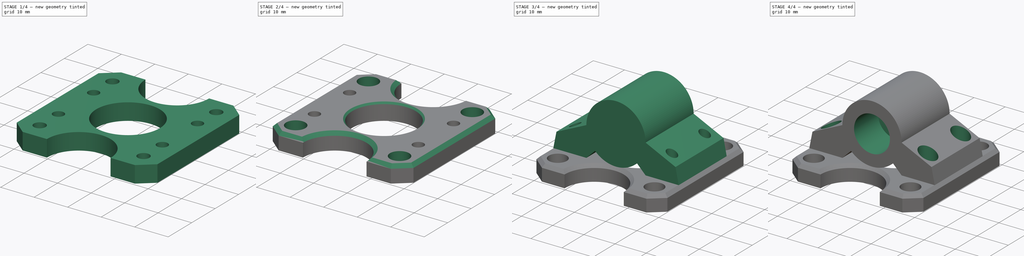
[diagram: build sequence overview — one tinted view per stage of 4, left to right]
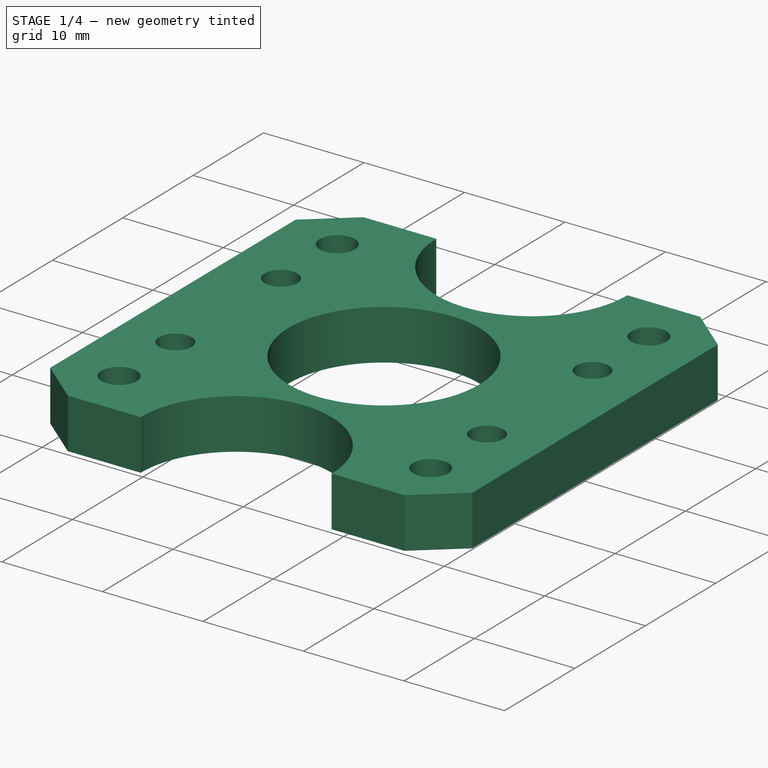
[diagram: stage 1 of 4 — iso view after this stage's code; geometry added in this stage tinted green]
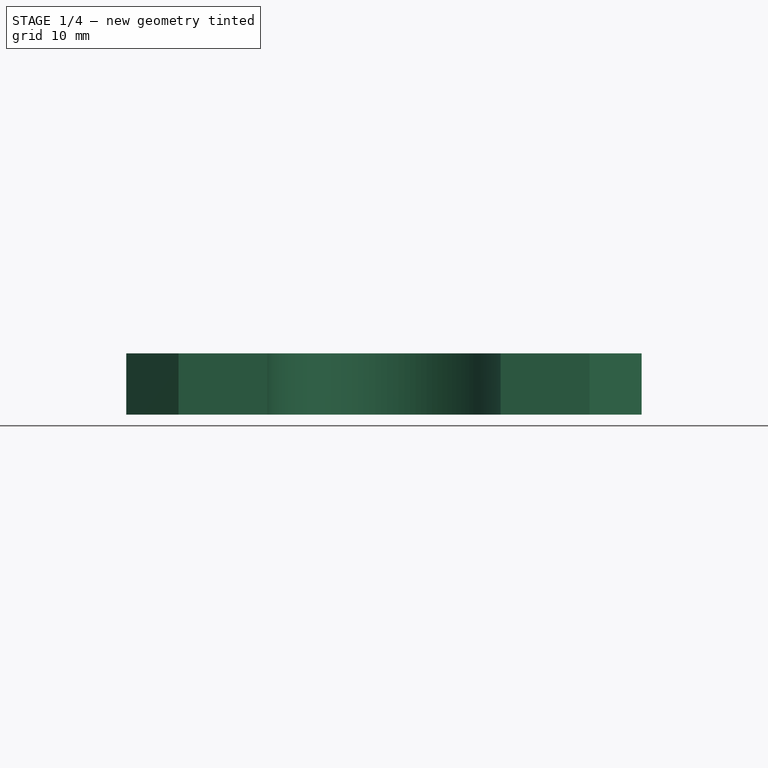
[diagram: stage 1 of 4 — front view after this stage's code; geometry added in this stage tinted green]
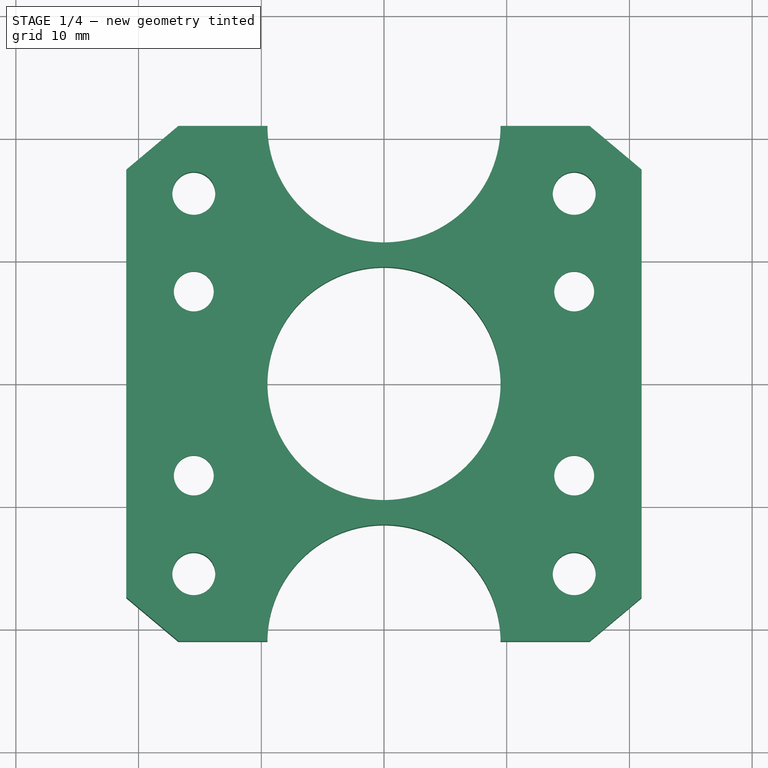
[diagram: stage 1 of 4 — top view after this stage's code; geometry added in this stage tinted green]
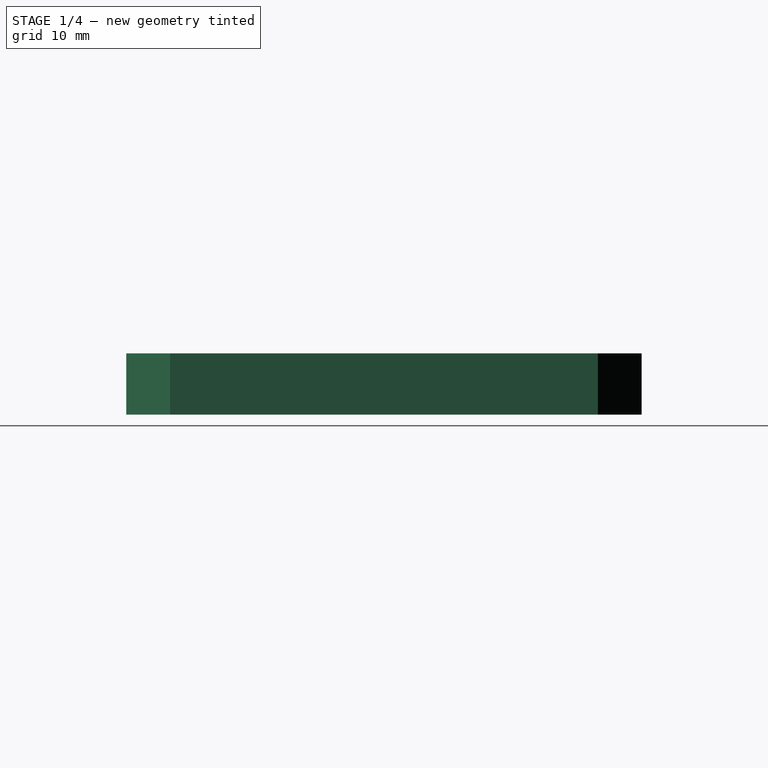
[diagram: stage 1 of 4 — right view after this stage's code; geometry added in this stage tinted green]
FCSTD DOCUMENT  (FreeCAD 0.18R16146 (Git))
Label: stepper-bracket
License: All rights reserved
LicenseURL: http://en.wikipedia.org/wiki/All_rights_reserved
objects: Sketcher::SketchObject×9, PartDesign::Pocket×7, PartDesign::Pad×2, PartDesign::Chamfer×2, PartDesign::Body×2, Part::Feature×1
note: 32 computed .brp shape members not serialized (recipe doc carries the construction recipe); baked Part::Feature solids carry a one-line shape summary decoded from their .brp

FEATURE [Part::Feature] stepper_nema17
  Placement = pos=(0,0,0) rot=(1,0,0;3.14159rad)
  shape: bbox 41.86 x 40.63 x 69.5 mm, 80 faces (baked)
FEATURE [Sketcher::SketchObject] Sketch
  MapMode = 5
  Support = -> [XY_Plane]
  sketch-geometry (19):
    g0: LineSegment StartX=16.75 StartY=21 StartZ=0 EndX=21 EndY=17.4338 EndZ=0
    g1: LineSegment StartX=21 StartY=17.4338 StartZ=0 EndX=21 EndY=0 EndZ=0
    g2: LineSegment StartX=-16.75 StartY=21 StartZ=0 EndX=-21 EndY=17.4338 EndZ=0
    g3: LineSegment StartX=-21 StartY=17.4338 StartZ=0 EndX=-21 EndY=0 EndZ=0
    g4: LineSegment StartX=16.75 StartY=-21 StartZ=0 EndX=21 EndY=-17.4338 EndZ=0
    g5: LineSegment StartX=21 StartY=-17.4338 StartZ=0 EndX=21 EndY=0 EndZ=0
    g6: LineSegment StartX=-21 StartY=0 StartZ=0 EndX=-21 EndY=-17.4338 EndZ=0
    g7: LineSegment StartX=-21 StartY=-17.4338 StartZ=0 EndX=-16.75 EndY=-21 EndZ=0
    g8: ArcOfCircle CenterX=0 CenterY=21 CenterZ=0 NormalX=0 NormalY=0 NormalZ=1 AngleXU=0 Radius=9.5 StartAngle=3.14159 EndAngle=6.28319
    g9: ArcOfCircle CenterX=0 CenterY=-21 CenterZ=0 NormalX=0 NormalY=0 NormalZ=1 AngleXU=0 Radius=9.5 StartAngle=2e-16 EndAngle=3.14159
    g10: LineSegment StartX=-16.75 StartY=-21 StartZ=0 EndX=-9.5 EndY=-21 EndZ=0
    g11: LineSegment StartX=16.75 StartY=-21 StartZ=0 EndX=9.5 EndY=-21 EndZ=0
    g12: Circle CenterX=0 CenterY=0 CenterZ=0 NormalX=0 NormalY=0 NormalZ=1 AngleXU=0 Radius=9.5
    g13: LineSegment StartX=-16.75 StartY=21 StartZ=0 EndX=-9.5 EndY=21 EndZ=0
    g14: LineSegment StartX=9.5 StartY=21 StartZ=0 EndX=16.75 EndY=21 EndZ=0
    g15: Circle CenterX=-15.5 CenterY=15.5 CenterZ=0 NormalX=0 NormalY=0 NormalZ=1 AngleXU=0 Radius=1.75
    g16: Circle CenterX=15.5 CenterY=15.5 CenterZ=0 NormalX=0 NormalY=0 NormalZ=1 AngleXU=0 Radius=1.75
    g17: Circle CenterX=-15.5 CenterY=-15.5 CenterZ=0 NormalX=0 NormalY=0 NormalZ=1 AngleXU=0 Radius=1.75
    g18: Circle CenterX=15.5 CenterY=-15.5 CenterZ=0 NormalX=0 NormalY=0 NormalZ=1 AngleXU=0 Radius=1.75
  constraints (58):
    c: Coincident(g1,g0)
    c: Coincident(g2,g3)
    c: Vertical(g3)
    c: Vertical(g1)
    c: DistanceY(g2,g0) = 0
    c: DistanceX(g2,g2) = 4.25
    c: DistanceY(g-1,g2) = 21
    c: Coincident(g5,g4)
    c: Vertical(g6)
    c: Coincident(g7,g6)
    c: PointOnObject(g9,g-2)
    c: DistanceY(g9,g-1) = 21
    c: Coincident(g10,g7)
    c: Horizontal(g10)
    c: Coincident(g11,g4)
    c: Horizontal(g11)
    c: Angle(g4,g11) = 2.44346
    c: DistanceX(g4,g0) = 0
    c: DistanceX(g7,g2) = 0
    c: DistanceY(g4,g6) = 0
    c: Coincident(g12,g-1)
    c: Angle(g10,g7) = 2.44346
    c: Vertical(g5)
    c: Coincident(g9,g11)
    c: Coincident(g9,g10)
    c: Coincident(g13,g2)
    c: Coincident(g13,g8)
    c: Horizontal(g13)
    c: Coincident(g14,g8)
    c: Coincident(g14,g0)
    c: Horizontal(g14)
    c: PointOnObject(g8,g-2)
    c: DistanceY(g8,g8) = 0
    c: DistanceY(g8,g8) = 0
    c: DistanceY(g9,g9) = 0
    c: DistanceY(g9,g9) = 0
    c: Angle(g2,g13) = 2.44346
    c: DistanceX(g15,g17) = 0
    c: DistanceX(g16,g18) = 0
    c: DistanceY(g16,g15) = 0
    c: DistanceY(g17,g18) = 0
    c: DistanceX(g15,g12) = 15.5
    c: DistanceX(g12,g16) = 15.5
    c: DistanceY(g12,g15) = 15.5
    c: DistanceY(g17,g12) = 15.5
    c: Diameter(g15) = 3.5
    c: Equal(g16,g15)
    c: Equal(g17,g15)
    c: Equal(g18,g15)
    c: PointOnObject(g3,g-1)
    c: PointOnObject(g1,g-1)
    c: DistanceX(g3,g12) = 21
    c: DistanceX(g12,g1) = 21
    c: Diameter(g12) = 19
    c: Equal(g8,g12)
    c: Equal(g9,g12)
    c: Coincident(g1,g5)
    c: Coincident(g3,g6)
FEATURE [PartDesign::Pad] Pad
  Length = 5
  Length2 = 100
  Profile = -> Sketch
  Type = 0
FEATURE [Sketcher::SketchObject] Sketch001
  MapMode = 5
  Support = -> [XY_Plane]
  sketch-geometry (28):
    g0: LineSegment StartX=-15.5 StartY=4.2 StartZ=0 EndX=-12.6421 EndY=5.85 EndZ=0
    g1: LineSegment StartX=-12.6421 StartY=5.85 StartZ=0 EndX=-12.6421 EndY=9.15 EndZ=0
    g2: LineSegment StartX=-12.6421 StartY=9.15 StartZ=0 EndX=-15.5 EndY=10.8 EndZ=0
    g3: LineSegment StartX=-15.5 StartY=10.8 StartZ=0 EndX=-18.3579 EndY=9.15 EndZ=0
    g4: LineSegment StartX=-18.3579 StartY=9.15 StartZ=0 EndX=-18.3579 EndY=5.85 EndZ=0
    g5: LineSegment StartX=-18.3579 StartY=5.85 StartZ=0 EndX=-15.5 EndY=4.2 EndZ=0
    g6: Circle [constr] CenterX=-15.5 CenterY=7.5 CenterZ=0 NormalX=0 NormalY=0 NormalZ=1 AngleXU=0 Radius=3.3
    g7: LineSegment StartX=-12.6421 StartY=-9.15 StartZ=0 EndX=-12.6421 EndY=-5.85 EndZ=0
    g8: LineSegment StartX=-12.6421 StartY=-5.85 StartZ=0 EndX=-15.5 EndY=-4.2 EndZ=0
    g9: LineSegment StartX=-15.5 StartY=-4.2 StartZ=0 EndX=-18.3579 EndY=-5.85 EndZ=0
    g10: LineSegment StartX=-18.3579 StartY=-5.85 StartZ=0 EndX=-18.3579 EndY=-9.15 EndZ=0
    g11: LineSegment StartX=-18.3579 StartY=-9.15 StartZ=0 EndX=-15.5 EndY=-10.8 EndZ=0
    g12: LineSegment StartX=-15.5 StartY=-10.8 StartZ=0 EndX=-12.6421 EndY=-9.15 EndZ=0
    g13: Circle [constr] CenterX=-15.5 CenterY=-7.5 CenterZ=0 NormalX=0 NormalY=0 NormalZ=1 AngleXU=0 Radius=3.3
    g14: LineSegment StartX=18.3579 StartY=5.85 StartZ=0 EndX=18.3579 EndY=9.15 EndZ=0
    g15: LineSegment StartX=18.3579 StartY=9.15 StartZ=0 EndX=15.5 EndY=10.8 EndZ=0
    g16: LineSegment StartX=15.5 StartY=10.8 StartZ=0 EndX=12.6421 EndY=9.15 EndZ=0
    g17: LineSegment StartX=12.6421 StartY=9.15 StartZ=0 EndX=12.6421 EndY=5.85 EndZ=0
    g18: LineSegment StartX=12.6421 StartY=5.85 StartZ=0 EndX=15.5 EndY=4.2 EndZ=0
    g19: LineSegment StartX=15.5 StartY=4.2 StartZ=0 EndX=18.3579 EndY=5.85 EndZ=0
    g20: Circle [constr] CenterX=15.5 CenterY=7.5 CenterZ=0 NormalX=0 NormalY=0 NormalZ=1 AngleXU=0 Radius=3.3
    g21: LineSegment StartX=18.3579 StartY=-9.15 StartZ=0 EndX=18.3579 EndY=-5.85 EndZ=0
    g22: LineSegment StartX=18.3579 StartY=-5.85 StartZ=0 EndX=15.5 EndY=-4.2 EndZ=0
    g23: LineSegment StartX=15.5 StartY=-4.2 StartZ=0 EndX=12.6421 EndY=-5.85 EndZ=0
    g24: LineSegment StartX=12.6421 StartY=-5.85 StartZ=0 EndX=12.6421 EndY=-9.15 EndZ=0
    g25: LineSegment StartX=12.6421 StartY=-9.15 StartZ=0 EndX=15.5 EndY=-10.8 EndZ=0
    g26: LineSegment StartX=15.5 StartY=-10.8 StartZ=0 EndX=18.3579 EndY=-9.15 EndZ=0
    g27: Circle [constr] CenterX=15.5 CenterY=-7.5 CenterZ=0 NormalX=0 NormalY=0 NormalZ=1 AngleXU=0 Radius=3.3
  constraints (68):
    c: Coincident(g0,g1)
    c: Coincident(g1,g2)
    c: Coincident(g2,g3)
    c: Coincident(g3,g4)
    c: Coincident(g4,g5)
    c: Coincident(g5,g0)
    c: Equal(g0, g1-g5) x5
    c: PointOnObject(g0,g6)
    c: PointOnObject(g1,g6)
    c: PointOnObject(g2,g6)
    c: PointOnObject(g3,g6)
    c: PointOnObject(g4,g6)
    c: PointOnObject(g5,g6)
    c: Coincident(g7,g8)
    c: Coincident(g8,g9)
    c: Coincident(g9,g10)
    c: Coincident(g10,g11)
    c: Coincident(g11,g12)
    c: Coincident(g12,g7)
    c: Equal(g7, g8-g12) x5
    c: PointOnObject(g7,g13)
    c: PointOnObject(g8,g13)
    c: PointOnObject(g9,g13)
    c: PointOnObject(g10,g13)
    c: PointOnObject(g11,g13)
    c: PointOnObject(g12,g13)
    c: Diameter(g6) = 6.6
    c: Vertical(g4)
    c: Equal(g13,g6)
    c: Vertical(g10)
    c: DistanceX(g13,g6) = 0
    c: DistanceY(g-1,g6) = 7.5
    c: DistanceY(g13,g-1) = 7.5
    c: DistanceX(g6,g-1) = 15.5
    c: Coincident(g14,g15)
    c: Coincident(g15,g16)
    c: Coincident(g16,g17)
    c: Coincident(g17,g18)
    c: Coincident(g18,g19)
    c: Coincident(g19,g14)
    c: Equal(g14, g15-g19) x5
    c: PointOnObject(g14,g20)
    c: PointOnObject(g15,g20)
    c: PointOnObject(g16,g20)
    c: PointOnObject(g17,g20)
    c: PointOnObject(g18,g20)
    c: PointOnObject(g19,g20)
    c: Coincident(g21,g22)
    c: Coincident(g22,g23)
    c: Coincident(g23,g24)
    c: Coincident(g24,g25)
    c: Coincident(g25,g26)
    c: Coincident(g26,g21)
    c: Equal(g21, g22-g26) x5
    c: PointOnObject(g21,g27)
    c: PointOnObject(g22,g27)
    c: PointOnObject(g23,g27)
    c: PointOnObject(g24,g27)
    c: PointOnObject(g25,g27)
    c: PointOnObject(g26,g27)
    c: DistanceY(g6,g20) = 0
    c: DistanceY(g27,g13) = 0
    c: Equal(g6,g20)
    c: Equal(g27,g6)
    c: Vertical(g17)
    c: Vertical(g24)
    c: DistanceX(g-1,g20) = 15.5
    c: DistanceX(g20,g27) = 0
FEATURE [PartDesign::Pocket] Pocket  label="m3 nuts"
  BaseFeature = -> Pad
  Length = 3
  Length2 = 100
  Profile = -> Sketch001
  Reversed = true
  Type = 0
FEATURE [Sketcher::SketchObject] Sketch002
  MapMode = 5
  Support = -> [XY_Plane]
  sketch-geometry (4):
    g0: Circle CenterX=-15.5 CenterY=7.5 CenterZ=0 NormalX=0 NormalY=0 NormalZ=1 AngleXU=0 Radius=1.625
    g1: Circle CenterX=15.5 CenterY=7.5 CenterZ=0 NormalX=0 NormalY=0 NormalZ=1 AngleXU=0 Radius=1.625
    g2: Circle CenterX=15.5 CenterY=-7.5 CenterZ=0 NormalX=0 NormalY=0 NormalZ=1 AngleXU=0 Radius=1.625
    g3: Circle CenterX=-15.5 CenterY=-7.5 CenterZ=0 NormalX=0 NormalY=0 NormalZ=1 AngleXU=0 Radius=1.625
  constraints (12):
    c: DistanceY(g0,g1) = 0
    c: DistanceY(g3,g2) = 0
    c: Diameter(g0) = 3.25
    c: Equal(g1,g0)
    c: Equal(g3,g0)
    c: Equal(g2,g0)
    c: DistanceY(g-1,g0) = 7.5
    c: DistanceX(g0,g-1) = 15.5
    c: DistanceY(g3,g-1) = 7.5
    c: DistanceX(g-1,g1) = 15.5
    c: DistanceX(g2,g1) = 0
    c: DistanceX(g3,g0) = 0
FEATURE [PartDesign::Pocket] Pocket001  label="m3 bolt holes"
  BaseFeature = -> Pocket
  Length = 5
  Length2 = 100
  Profile = -> Sketch002
  Reversed = true
  Type = 1
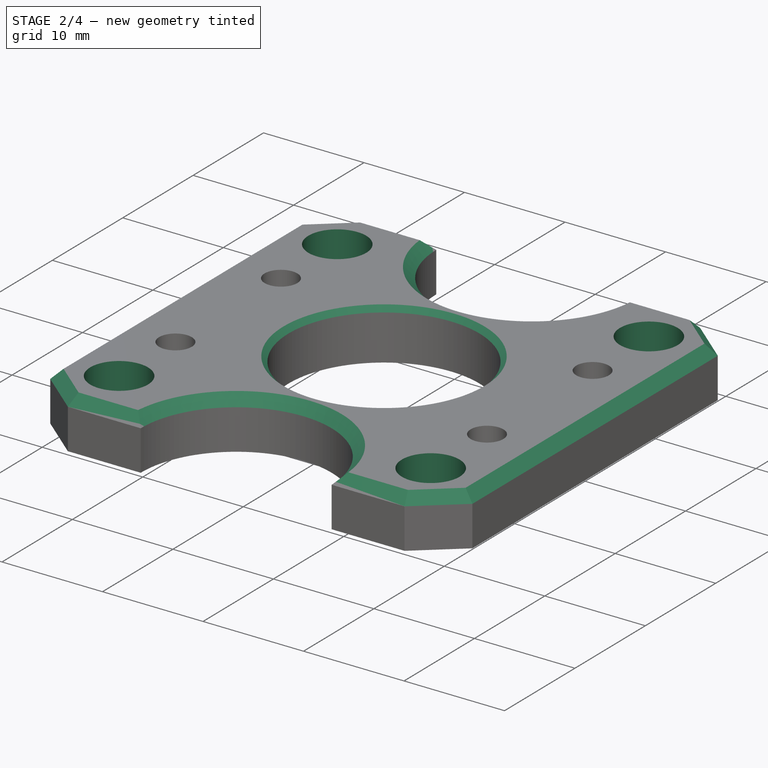
[diagram: stage 2 of 4 — iso view after this stage's code; geometry added in this stage tinted green]
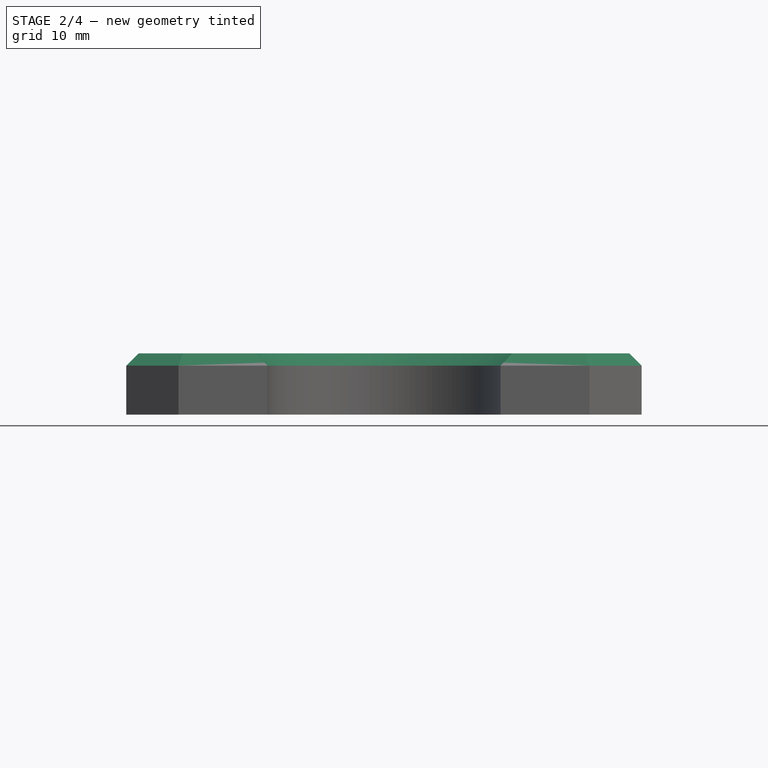
[diagram: stage 2 of 4 — front view after this stage's code; geometry added in this stage tinted green]
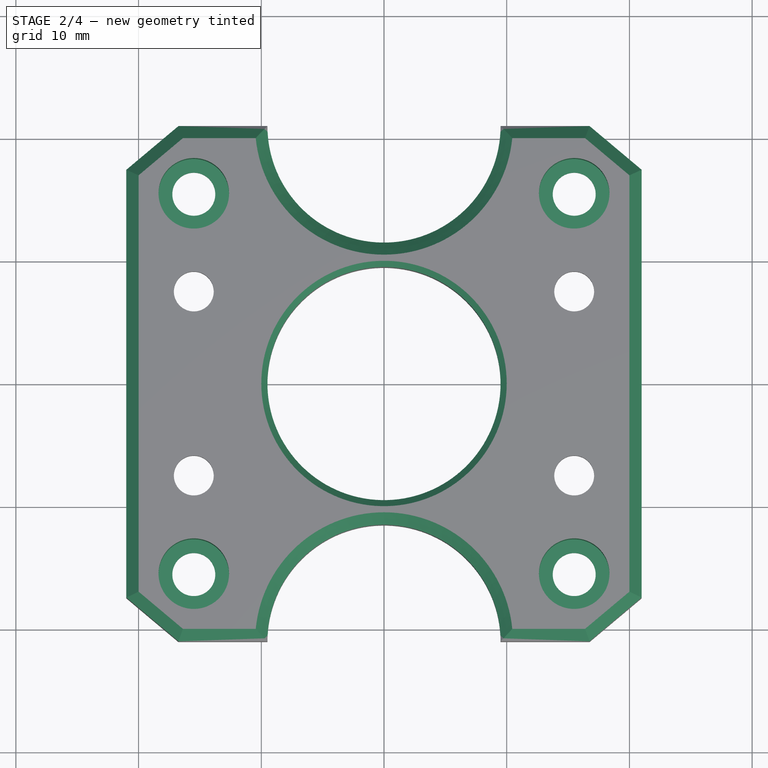
[diagram: stage 2 of 4 — top view after this stage's code; geometry added in this stage tinted green]
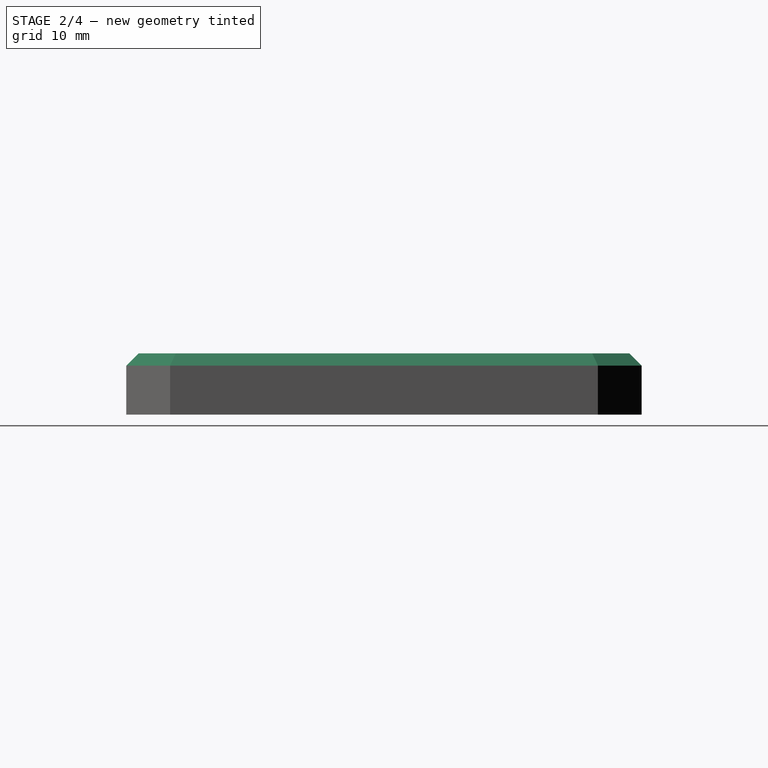
[diagram: stage 2 of 4 — right view after this stage's code; geometry added in this stage tinted green]
FEATURE [Sketcher::SketchObject] Sketch003
  AttachmentOffset = pos=(0,0,5) rot=(0,0,1;0rad)
  MapMode = 5
  Placement = pos=(0,0,5) rot=(0,0,1;0rad)
  Support = -> [XY_Plane]
  sketch-geometry (4):
    g0: Circle CenterX=-15.5 CenterY=15.5 CenterZ=0 NormalX=0 NormalY=0 NormalZ=1 AngleXU=0 Radius=2.875
    g1: Circle CenterX=15.5 CenterY=15.5 CenterZ=0 NormalX=0 NormalY=0 NormalZ=1 AngleXU=0 Radius=2.875
    g2: Circle CenterX=-15.5 CenterY=-15.5 CenterZ=0 NormalX=0 NormalY=0 NormalZ=1 AngleXU=0 Radius=2.875
    g3: Circle CenterX=15.5 CenterY=-15.5 CenterZ=0 NormalX=0 NormalY=0 NormalZ=1 AngleXU=0 Radius=2.875
  constraints (12):
    c: Equal(g1,g0)
    c: Equal(g0,g2)
    c: Equal(g3,g0)
    c: Diameter(g0) = 5.75
    c: DistanceY(g1,g0) = 0
    c: DistanceY(g3,g2) = 0
    c: DistanceY(g-1,g0) = 15.5
    c: DistanceY(g2,g-1) = 15.5
    c: DistanceX(g0,g-1) = 15.5
    c: DistanceX(g2,g0) = 0
    c: DistanceX(g-1,g1) = 15.5
    c: DistanceX(g1,g3) = 0
FEATURE [PartDesign::Pocket] Pocket002
  BaseFeature = -> Pocket001
  Length = 4.5
  Length2 = 100
  Profile = -> Sketch003
  Type = 0
FEATURE [PartDesign::Chamfer] Chamfer
  Base = -> Pocket002 [Edge57,Edge55,Edge53,Edge51,Edge7,Edge4,Edge10,Edge52,Edge54,Edge56,Edge58,Edge59,Edge61,Edge60]
  BaseFeature = -> Pocket002
  Size = 1
FEATURE [PartDesign::Body] Body001
  Group = -> [Sketch004,Pad001,Sketch005,Pocket003,Sketch006,Pocket004,Sketch007,Pocket005,Sketch008,Pocket006]
  Origin = -> Origin001
  Tip = -> Pocket006
FEATURE [PartDesign::Chamfer] Chamfer002
  Base = -> Chamfer [Edge73]
  BaseFeature = -> Chamfer
  Size = 0.5
FEATURE [PartDesign::Body] Body
  Group = -> [Sketch,Pad,Sketch001,Pocket,Sketch002,Pocket001,Sketch003,Pocket002,Chamfer,Chamfer002]
  Origin = -> Origin
  Tip = -> Chamfer002
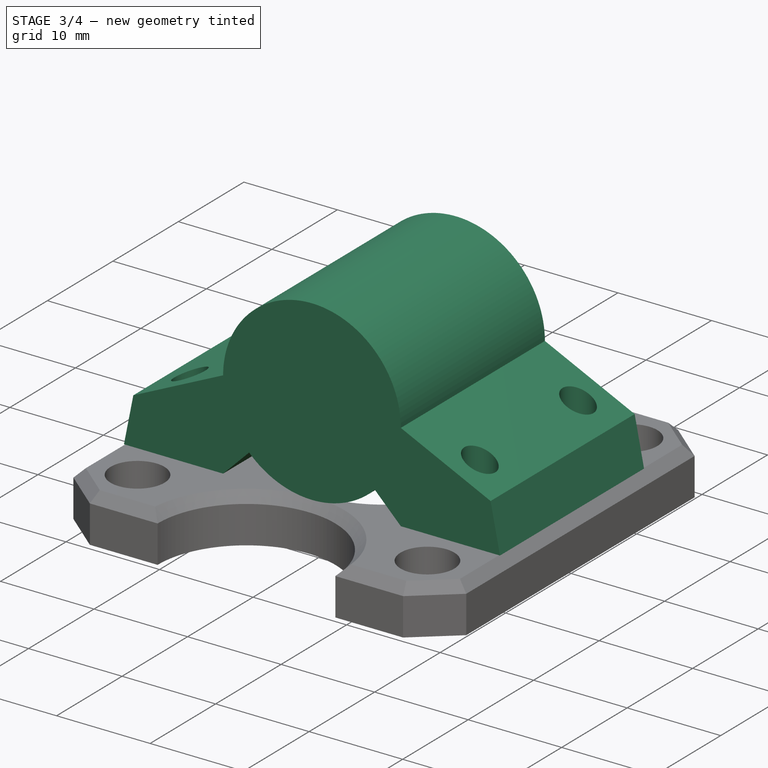
[diagram: stage 3 of 4 — iso view after this stage's code; geometry added in this stage tinted green]
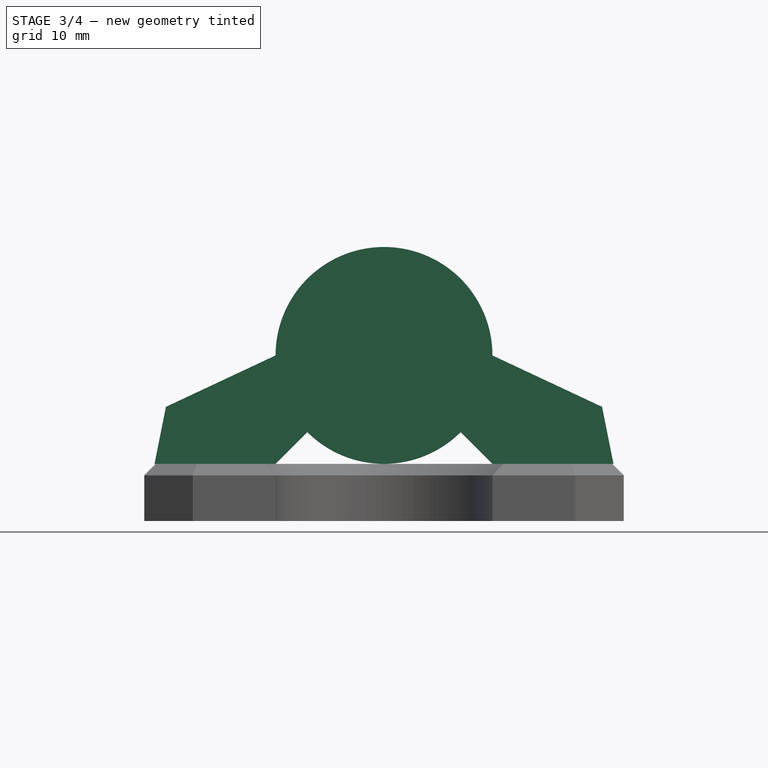
[diagram: stage 3 of 4 — front view after this stage's code; geometry added in this stage tinted green]
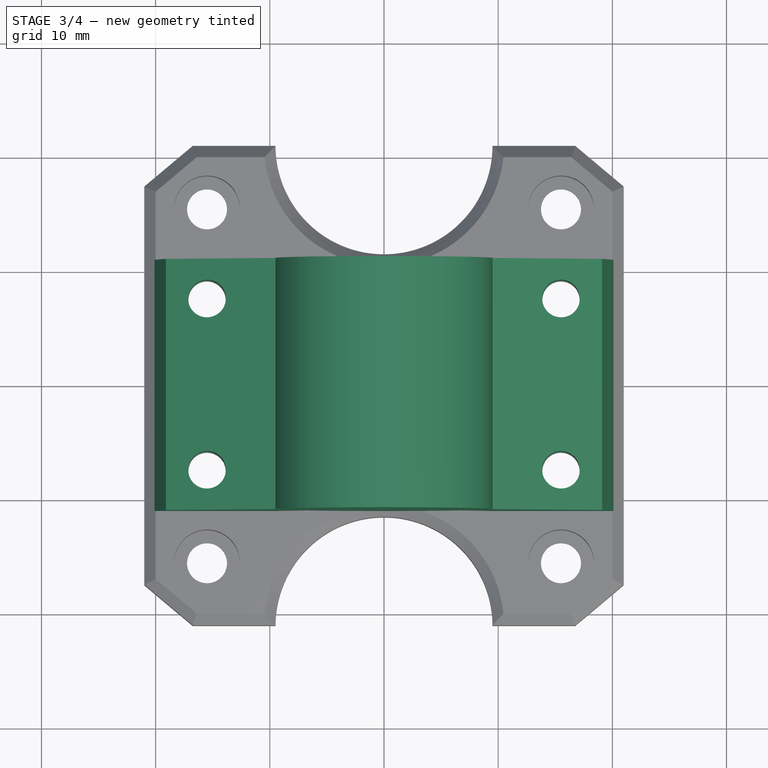
[diagram: stage 3 of 4 — top view after this stage's code; geometry added in this stage tinted green]
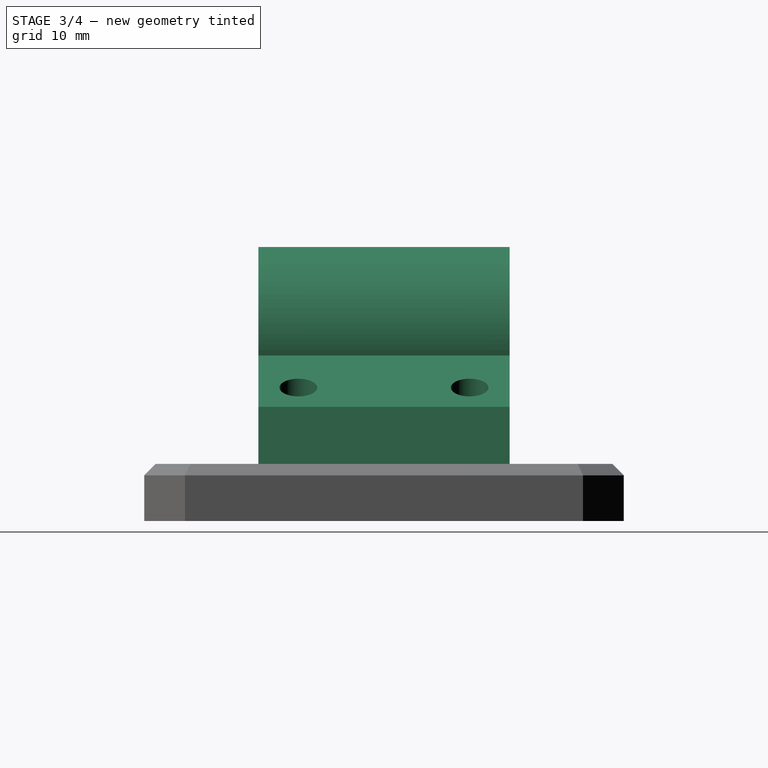
[diagram: stage 3 of 4 — right view after this stage's code; geometry added in this stage tinted green]
FEATURE [Sketcher::SketchObject] Sketch004
  AttachmentOffset = pos=(0,0,11) rot=(0,0,1;0rad)
  MapMode = 5
  Placement = pos=(0,-11,2.4e-15) rot=(1,0,0;1.5708rad)
  Support = -> [XZ_Plane001]
  sketch-geometry (10):
    g0: LineSegment StartX=-20.1 StartY=5 StartZ=0 EndX=-19.1 EndY=10 EndZ=0
    g1: LineSegment StartX=-20.1 StartY=5 StartZ=0 EndX=-9.5 EndY=5 EndZ=0
    g2: LineSegment StartX=9.5 StartY=5 StartZ=0 EndX=20.1 EndY=5 EndZ=0
    g3: LineSegment StartX=20.1 StartY=5 StartZ=0 EndX=19.1 EndY=10 EndZ=0
    g4: ArcOfCircle CenterX=0 CenterY=14.5 CenterZ=0 NormalX=0 NormalY=0 NormalZ=1 AngleXU=0 Radius=9.5 StartAngle=3.92699 EndAngle=5.49779
    g5: LineSegment StartX=-9.5 StartY=14.5 StartZ=0 EndX=-19.1 EndY=10 EndZ=0
    g6: LineSegment StartX=9.5 StartY=14.5 StartZ=0 EndX=19.1 EndY=10 EndZ=0
    g7: LineSegment StartX=-9.5 StartY=5 StartZ=0 EndX=-6.71751 EndY=7.78249 EndZ=0
    g8: LineSegment StartX=9.5 StartY=5 StartZ=0 EndX=6.71751 EndY=7.78249 EndZ=0
    g9: ArcOfCircle CenterX=0 CenterY=14.5 CenterZ=0 NormalX=0 NormalY=0 NormalZ=1 AngleXU=0 Radius=9.5 StartAngle=0 EndAngle=3.14159
  constraints (31):
    c: Coincident(g1,g0)
    c: Horizontal(g1)
    c: Horizontal(g2)
    c: Coincident(g3,g2)
    c: DistanceY(g0,g0) = 5
    c: DistanceY(g3,g0) = 0
    c: DistanceX(g0,g-1) = 20.1
    c: DistanceX(g-1,g2) = 20.1
    c: DistanceX(g0,g0) = 1
    c: DistanceX(g3,g2) = 1
    c: PointOnObject(g4,g-2)
    c: Diameter(g4) = 19
    c: DistanceY(g-1,g4) = 14.5
    c: Coincident(g5,g0)
    c: Coincident(g6,g3)
    c: Coincident(g7,g1)
    c: Coincident(g8,g2)
    c: DistanceY(g-1,g1) = 5
    c: DistanceY(g2,g1) = 0
    c: Coincident(g4,g7)
    c: Coincident(g9,g5)
    c: Equal(g4,g9)
    c: Coincident(g4,g8)
    c: Coincident(g9,g6)
    c: Coincident(g4,g9)
    c: DistanceY(g5,g4) = 0
    c: DistanceY(g6,g4) = 0
    c: Angle(g7,g1) = 2.35619
    c: Angle(g2,g8) = 2.35619
    c: DistanceX(g1,g5) = 0
    c: DistanceX(g6,g2) = 0
FEATURE [PartDesign::Pad] Pad001
  Length = 22
  Length2 = 100
  Placement = pos=(0,0,0) rot=(1,0,0;1.5708rad)
  Profile = -> Sketch004
  Reversed = true
  Type = 0
FEATURE [Sketcher::SketchObject] Sketch005
  MapMode = 5
  Support = -> [XY_Plane001]
  sketch-geometry (4):
    g0: Circle CenterX=-15.5 CenterY=7.5 CenterZ=0 NormalX=0 NormalY=0 NormalZ=1 AngleXU=0 Radius=1.65
    g1: Circle CenterX=15.5 CenterY=7.5 CenterZ=0 NormalX=0 NormalY=0 NormalZ=1 AngleXU=0 Radius=1.65
    g2: Circle CenterX=15.5 CenterY=-7.5 CenterZ=0 NormalX=0 NormalY=0 NormalZ=1 AngleXU=0 Radius=1.65
    g3: Circle CenterX=-15.5 CenterY=-7.5 CenterZ=0 NormalX=0 NormalY=0 NormalZ=1 AngleXU=0 Radius=1.65
  constraints (12):
    c: DistanceX(g3,g0) = 0
    c: DistanceX(g2,g1) = 0
    c: DistanceY(g1,g0) = 0
    c: DistanceY(g3,g2) = 0
    c: Diameter(g0) = 3.3
    c: Equal(g1,g0)
    c: Equal(g3,g0)
    c: Equal(g2,g0)
    c: DistanceY(g-1,g0) = 7.5
    c: DistanceY(g3,g-1) = 7.5
    c: DistanceX(g0,g-1) = 15.5
    c: DistanceX(g-1,g1) = 15.5
FEATURE [PartDesign::Pocket] Pocket003
  BaseFeature = -> Pad001
  Length = 5
  Length2 = 100
  Placement = pos=(0,0,0) rot=(1,0,0;1.5708rad)
  Profile = -> Sketch005
  Reversed = true
  Type = 1
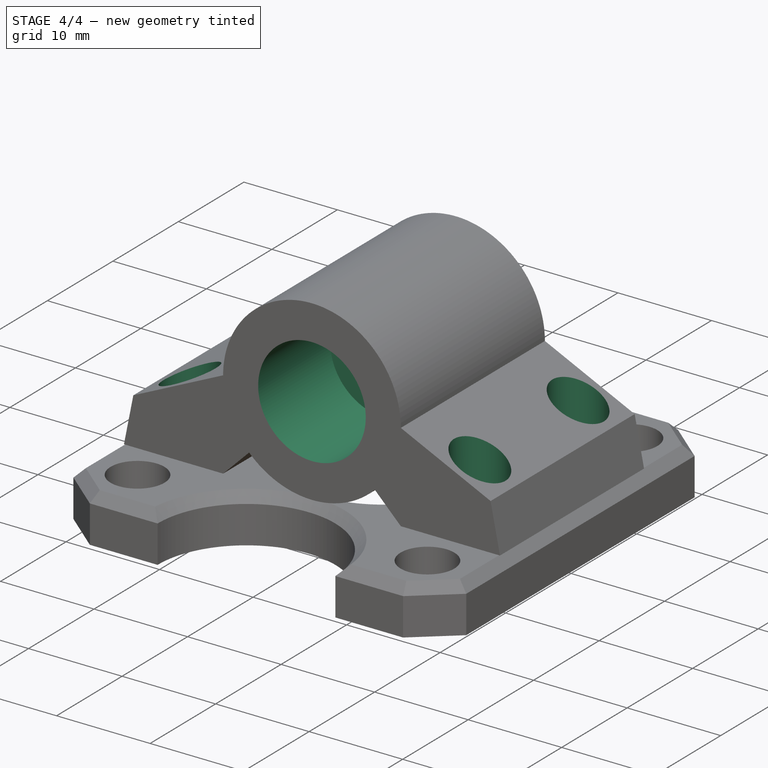
[diagram: stage 4 of 4 — iso view after this stage's code; geometry added in this stage tinted green]
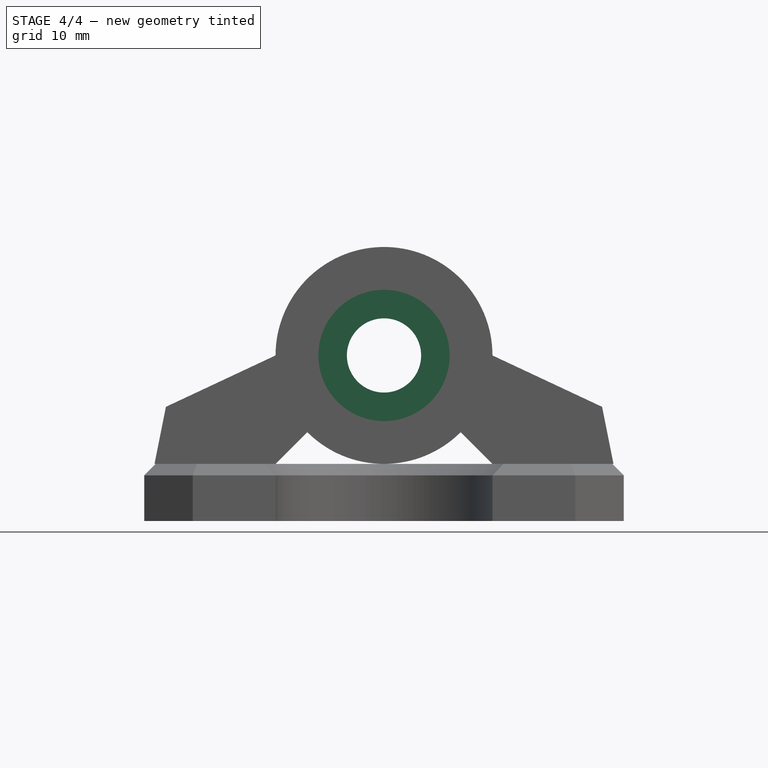
[diagram: stage 4 of 4 — front view after this stage's code; geometry added in this stage tinted green]
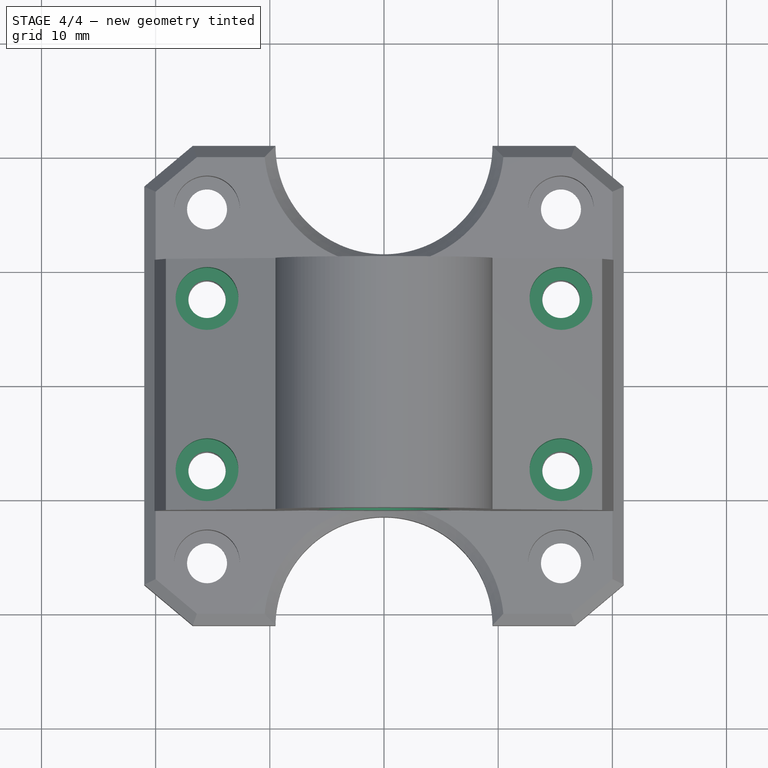
[diagram: stage 4 of 4 — top view after this stage's code; geometry added in this stage tinted green]
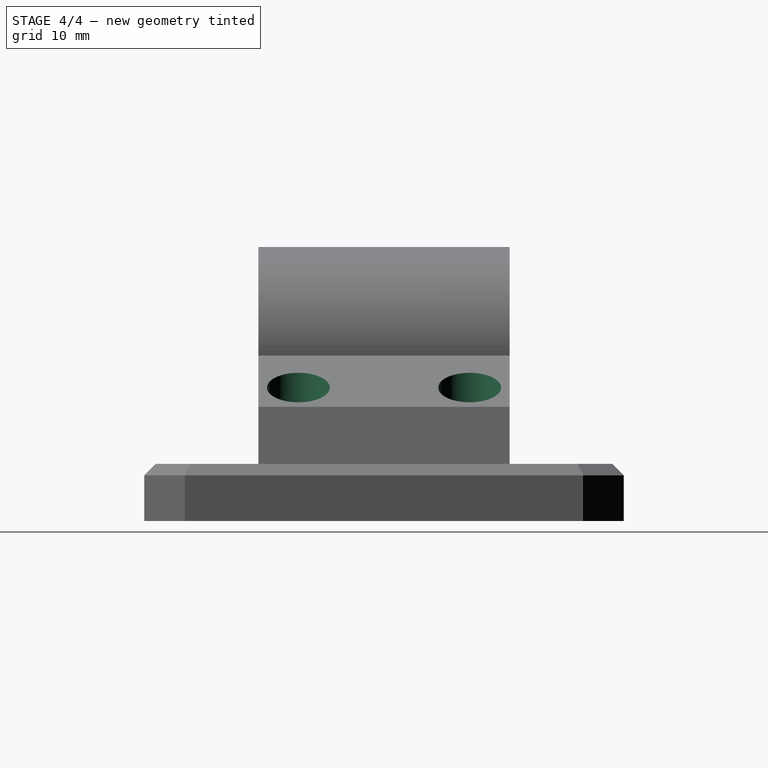
[diagram: stage 4 of 4 — right view after this stage's code; geometry added in this stage tinted green]
FEATURE [Sketcher::SketchObject] Sketch006
  AttachmentOffset = pos=(0,0,8) rot=(0,0,1;0rad)
  MapMode = 5
  Placement = pos=(0,0,8) rot=(0,0,1;0rad)
  Support = -> [XY_Plane001]
  sketch-geometry (4):
    g0: Circle CenterX=-15.5 CenterY=7.5 CenterZ=0 NormalX=0 NormalY=0 NormalZ=1 AngleXU=0 Radius=2.75
    g1: Circle CenterX=-15.5 CenterY=-7.5 CenterZ=0 NormalX=0 NormalY=0 NormalZ=1 AngleXU=0 Radius=2.75
    g2: Circle CenterX=15.5 CenterY=7.5 CenterZ=0 NormalX=0 NormalY=0 NormalZ=1 AngleXU=0 Radius=2.75
    g3: Circle CenterX=15.5 CenterY=-7.5 CenterZ=0 NormalX=0 NormalY=0 NormalZ=1 AngleXU=0 Radius=2.75
  constraints (12):
    c: DistanceY(g0,g2) = 0
    c: DistanceY(g3,g1) = 0
    c: DistanceX(g1,g0) = 0
    c: DistanceX(g2,g3) = 0
    c: Diameter(g0) = 5.5
    c: Equal(g2,g0)
    c: Equal(g1,g0)
    c: Equal(g0,g3)
    c: DistanceX(g0,g-1) = 15.5
    c: DistanceX(g-1,g2) = 15.5
    c: DistanceY(g-1,g0) = 7.5
    c: DistanceY(g1,g-1) = 7.5
FEATURE [PartDesign::Pocket] Pocket004
  BaseFeature = -> Pocket003
  Length = 5
  Length2 = 100
  Placement = pos=(0,0,0) rot=(1,0,0;1.5708rad)
  Profile = -> Sketch006
  Reversed = true
  Type = 1
FEATURE [Sketcher::SketchObject] Sketch007
  AttachmentOffset = pos=(0,0,50) rot=(0,0,1;0rad)
  MapMode = 5
  Placement = pos=(0,-50,1.11e-14) rot=(1,0,0;1.5708rad)
  Support = -> [XZ_Plane001]
  sketch-geometry (1):
    g0: Circle CenterX=0 CenterY=14.5 CenterZ=0 NormalX=0 NormalY=0 NormalZ=1 AngleXU=0 Radius=3.25
  constraints (3):
    c: PointOnObject(g0,g-2)
    c: Diameter(g0) = 6.5
    c: DistanceY(g-1,g0) = 14.5
FEATURE [PartDesign::Pocket] Pocket005
  BaseFeature = -> Pocket004
  Length = 5
  Length2 = 100
  Placement = pos=(0,0,0) rot=(1,0,0;1.5708rad)
  Profile = -> Sketch007
  Type = 1
FEATURE [Sketcher::SketchObject] Sketch008
  AttachmentOffset = pos=(0,0,11) rot=(0,0,1;0rad)
  MapMode = 5
  Placement = pos=(0,-11,2.4e-15) rot=(1,0,0;1.5708rad)
  Support = -> [XZ_Plane001]
  sketch-geometry (1):
    g0: Circle CenterX=0 CenterY=14.5 CenterZ=0 NormalX=0 NormalY=0 NormalZ=1 AngleXU=0 Radius=5.75
  constraints (3):
    c: PointOnObject(g0,g-2)
    c: Diameter(g0) = 11.5
    c: DistanceY(g-1,g0) = 14.5
FEATURE [PartDesign::Pocket] Pocket006
  BaseFeature = -> Pocket005
  Length = 11
  Length2 = 100
  Placement = pos=(0,0,0) rot=(1,0,0;1.5708rad)
  Profile = -> Sketch008
  Type = 0
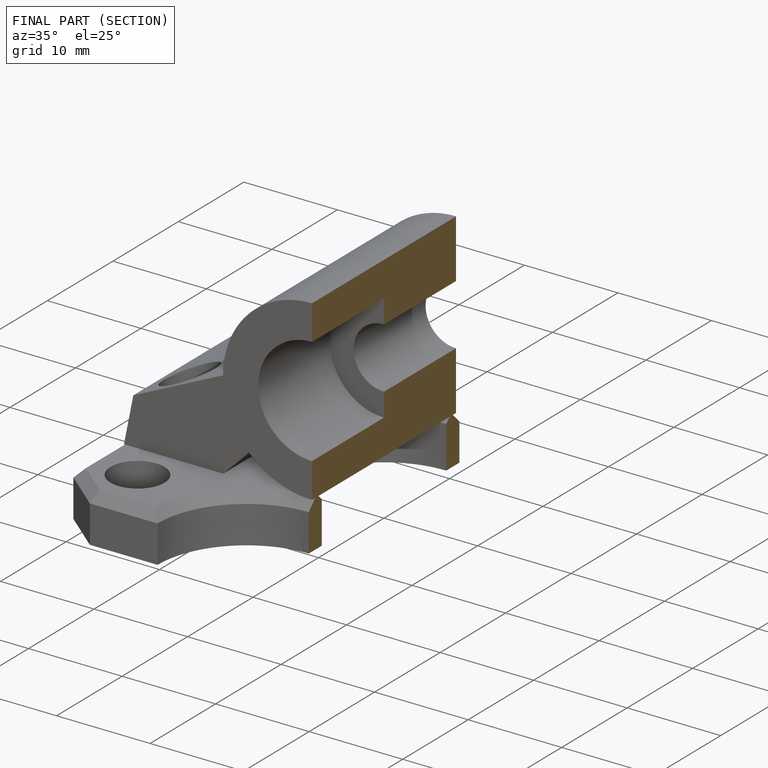
[diagram: finished part — half-section view (interior)]
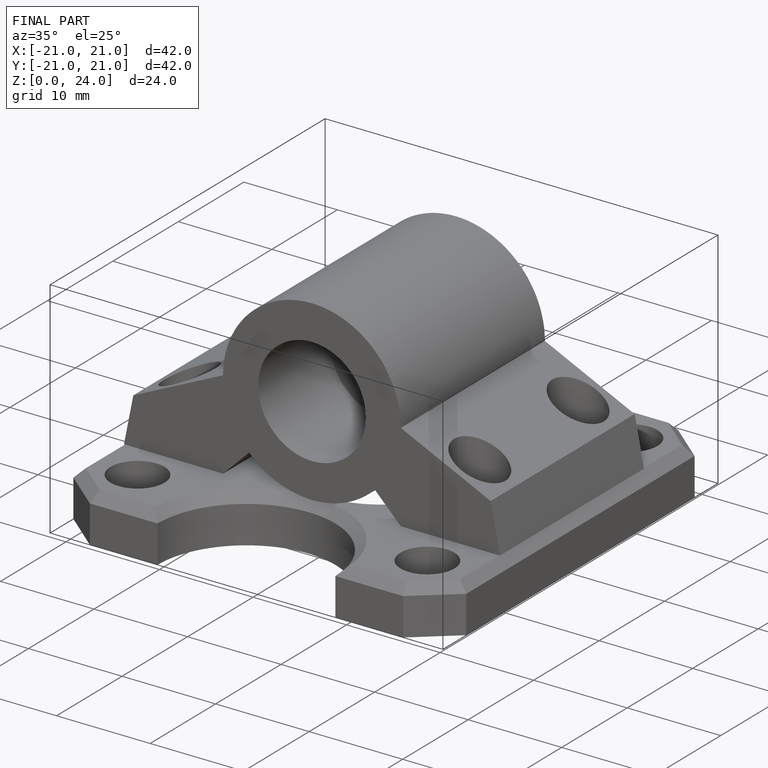
[diagram: finished part — iso view with bounding-box wireframe]
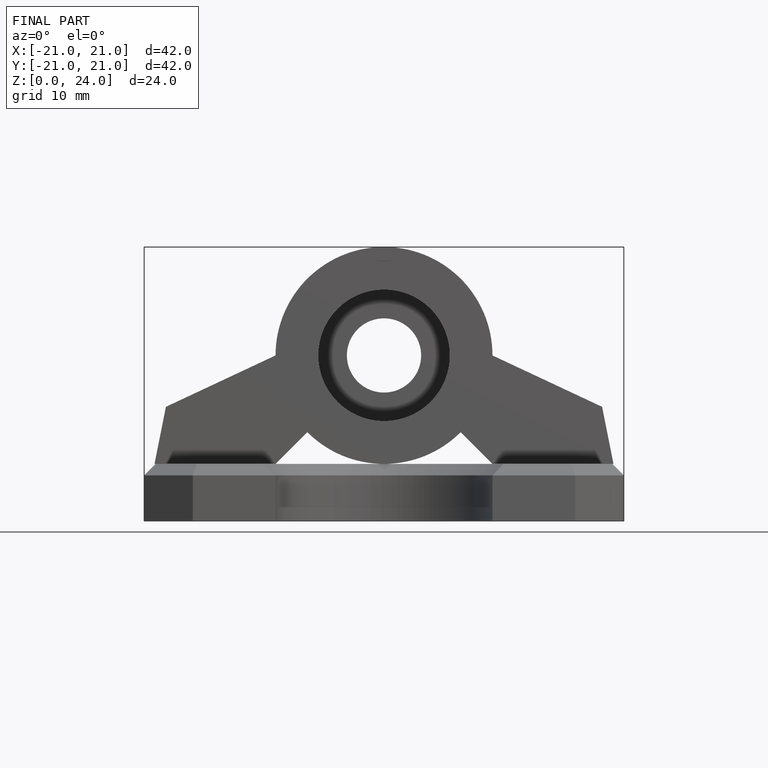
[diagram: finished part — front view with bounding-box wireframe]
